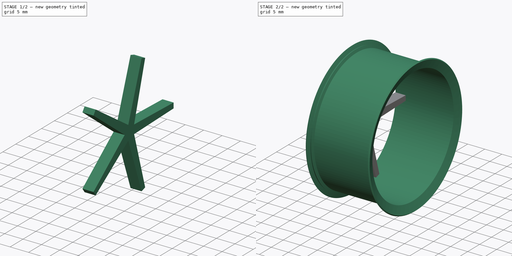
[diagram: build sequence overview — one tinted view per stage of 2, left to right]
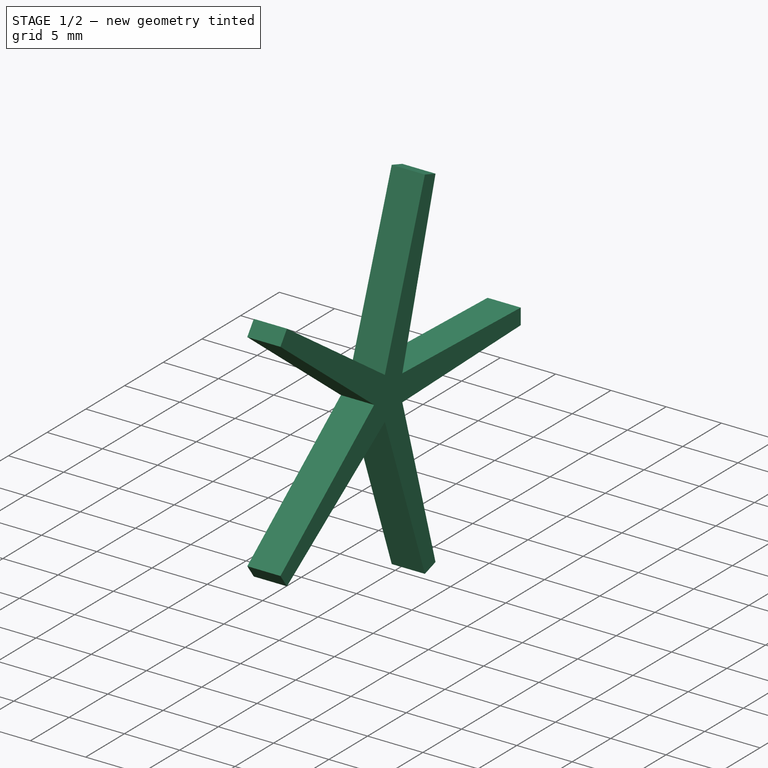
[diagram: stage 1 of 2 — iso view after this stage's code; geometry added in this stage tinted green]
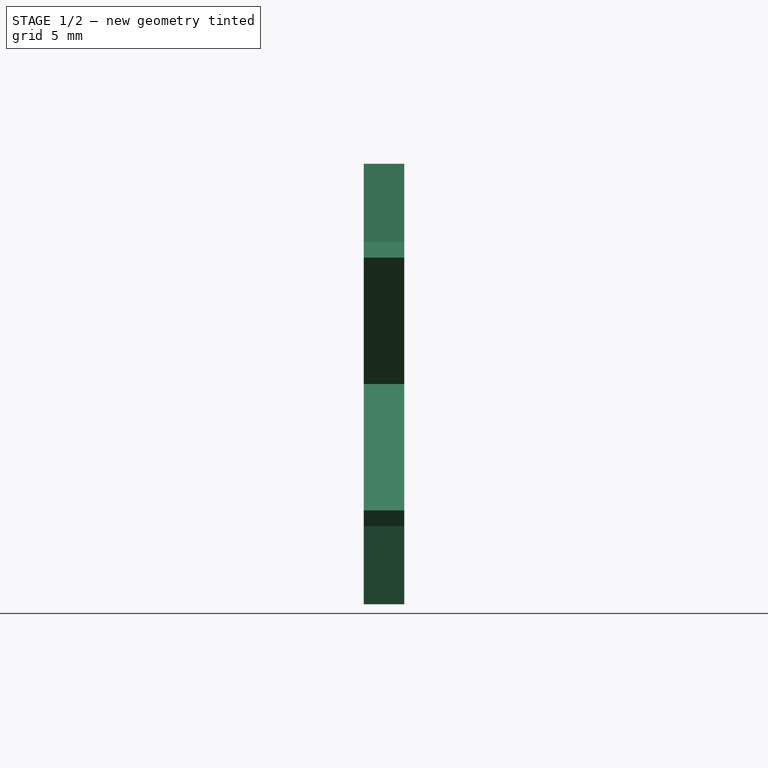
[diagram: stage 1 of 2 — front view after this stage's code; geometry added in this stage tinted green]
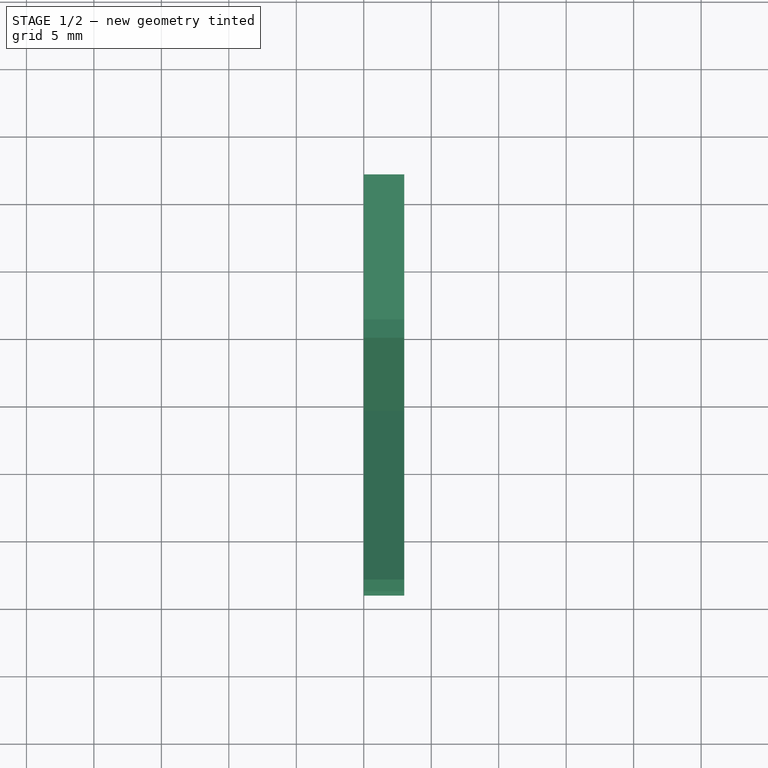
[diagram: stage 1 of 2 — top view after this stage's code; geometry added in this stage tinted green]
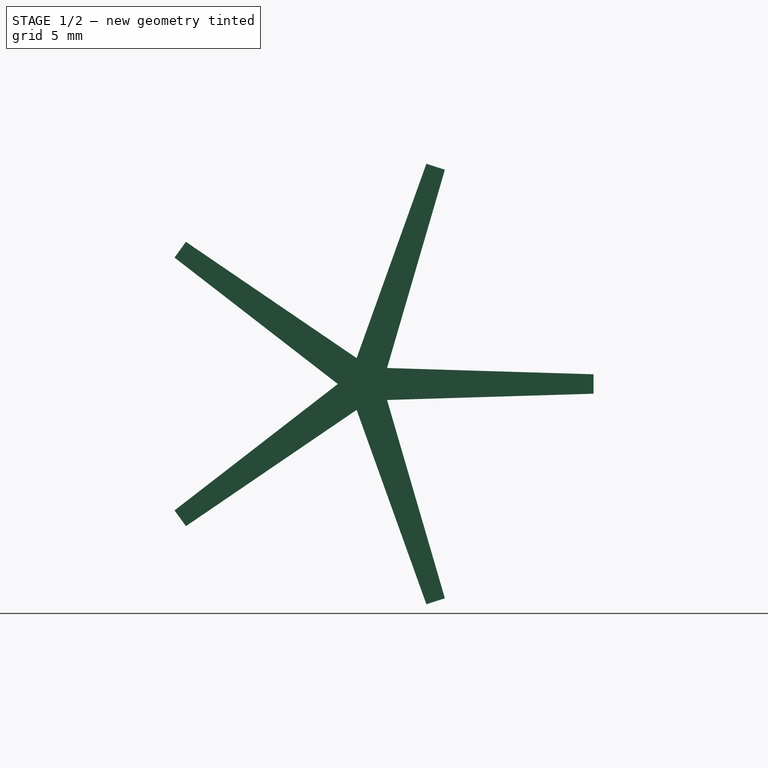
[diagram: stage 1 of 2 — right view after this stage's code; geometry added in this stage tinted green]
FCSTD DOCUMENT  (FreeCAD 0.18R4 (GitTag))
Label: Vossen
License: All rights reserved
LicenseURL: http://en.wikipedia.org/wiki/All_rights_reserved
objects: Sketcher::SketchObject×3, PartDesign::Body×2, PartDesign::Revolution×1, PartDesign::Pad×1, PartDesign::PolarPattern×1, PartDesign::Pocket×1
note: 12 computed .brp shape members not serialized (recipe doc carries the construction recipe); baked Part::Feature solids carry a one-line shape summary decoded from their .brp

FEATURE [PartDesign::Body] Body
  Group = -> [Sketch,Revolution]
  Origin = -> Origin
  Tip = -> Revolution
FEATURE [Sketcher::SketchObject] Sketch002
  MapMode = 5
  Placement = pos=(0,0,0) rot=(0.57735,0.57735,0.57735;2.0944rad)
  Support = -> [YZ_Plane001]
  sketch-geometry (4):
    g0: LineSegment StartX=0 StartY=1.235 StartZ=0 EndX=16.93 EndY=0.72 EndZ=0
    g1: LineSegment StartX=16.93 StartY=0.72 StartZ=0 EndX=16.93 EndY=-0.72 EndZ=0
    g2: LineSegment StartX=16.93 StartY=-0.72 StartZ=0 EndX=0 EndY=-1.235 EndZ=0
    g3: LineSegment StartX=0 StartY=-1.235 StartZ=0 EndX=0 EndY=1.235 EndZ=0
  constraints (10):
    c: Coincident(g0,g1)
    c: Coincident(g1,g2)
    c: Coincident(g2,g3)
    c: Coincident(g3,g0)
    c: PointOnObject(g0,g-2)
    c: DistanceY(g1,g1) = 1.44
    c: DistanceY(g3,g3) = 2.47
    c: DistanceX(g2,g1) = 16.93
    c: Symmetric(g2,g0,g-1)
    c: Symmetric(g0,g1,g-1)
FEATURE [PartDesign::Pad] Pad
  Length = 3
  Length2 = 100
  Placement = pos=(0,0,0) rot=(0.57735,0.57735,0.57735;2.0944rad)
  Profile = -> Sketch002
  Type = 0
FEATURE [PartDesign::PolarPattern] PolarPattern
  Angle = 360
  Axis = -> Sketch002 [N_Axis]
  BaseFeature = -> Pad
  Occurrences = 5
  Originals = -> [Pad]
  Placement = pos=(0,0,0) rot=(0.57735,0.57735,0.57735;2.0944rad)
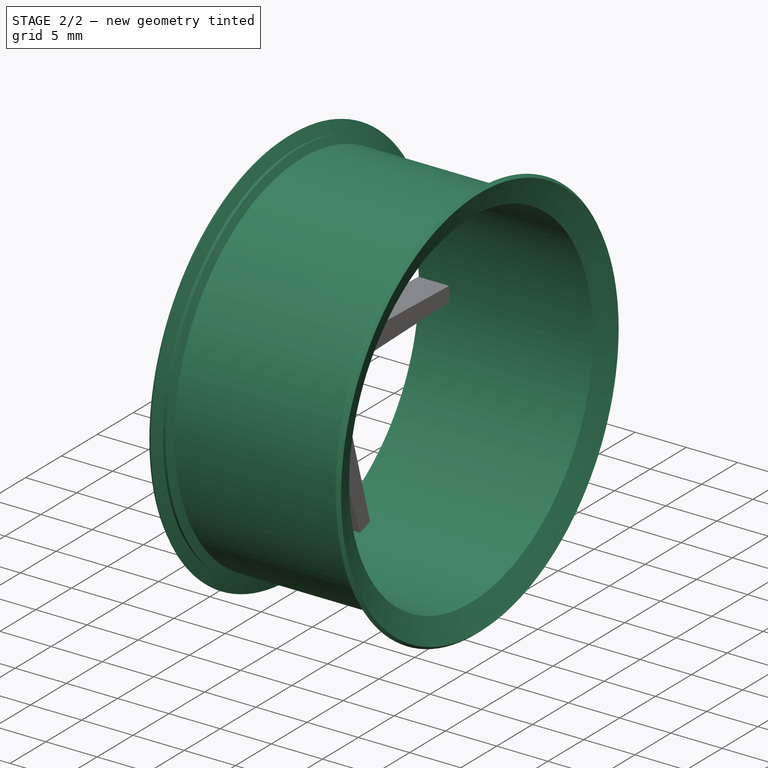
[diagram: stage 2 of 2 — iso view after this stage's code; geometry added in this stage tinted green]
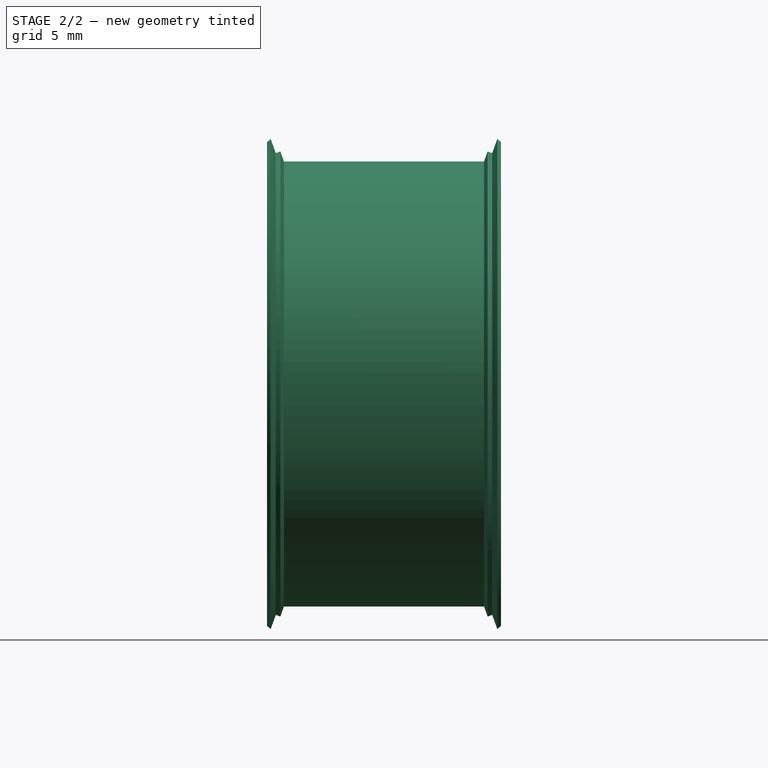
[diagram: stage 2 of 2 — front view after this stage's code; geometry added in this stage tinted green]
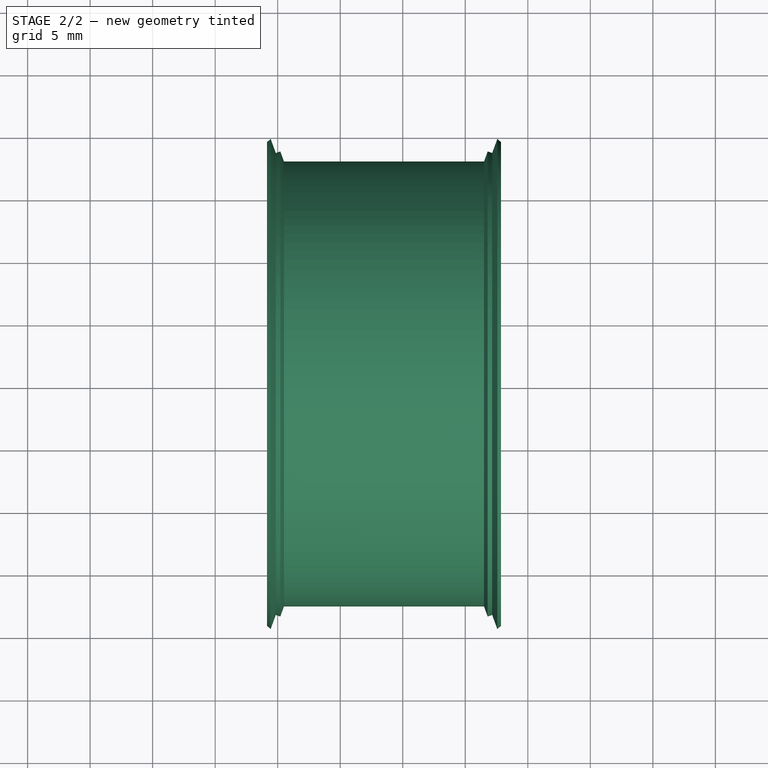
[diagram: stage 2 of 2 — top view after this stage's code; geometry added in this stage tinted green]
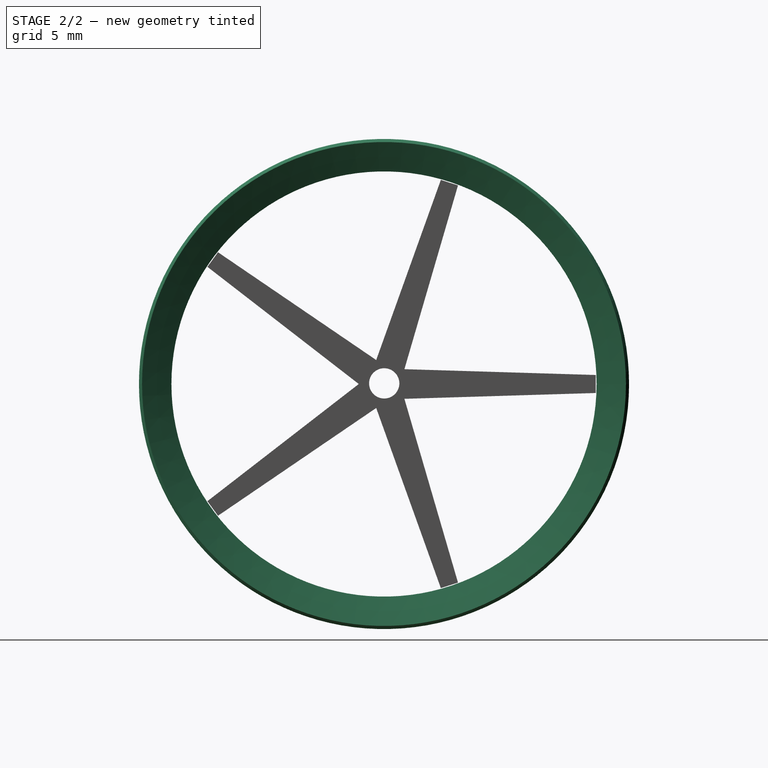
[diagram: stage 2 of 2 — right view after this stage's code; geometry added in this stage tinted green]
FEATURE [Sketcher::SketchObject] Sketch
  MapMode = 5
  Support = -> [XY_Plane]
  sketch-geometry (12):
    g0: LineSegment StartX=-0.85505 StartY=19.3492 StartZ=0 EndX=0 EndY=17 EndZ=0
    g1: LineSegment StartX=0 StartY=17 StartZ=0 EndX=17 EndY=17 EndZ=0
    g2: LineSegment StartX=17 StartY=17 StartZ=0 EndX=17.8551 EndY=19.3492 EndZ=0
    g3: LineSegment StartX=17.8551 StartY=19.3492 StartZ=0 EndX=17.5614 EndY=19.5956 EndZ=0
    g4: LineSegment StartX=17.5614 StartY=19.5956 StartZ=0 EndX=17.1513 EndY=18.4689 EndZ=0
    g5: LineSegment StartX=17.1513 StartY=18.4689 StartZ=0 EndX=16.7912 EndY=18.6 EndZ=0
    g6: LineSegment StartX=16.7912 StartY=18.6 StartZ=0 EndX=16.5 EndY=17.8 EndZ=0
    g7: LineSegment StartX=16.5 StartY=17.8 StartZ=0 EndX=0.5 EndY=17.8 EndZ=0
    g8: LineSegment StartX=0.5 StartY=17.8 StartZ=0 EndX=0.208824 EndY=18.6 EndZ=0
    g9: LineSegment StartX=0.208824 StartY=18.6 StartZ=0 EndX=-0.15135 EndY=18.4689 EndZ=0
    g10: LineSegment StartX=-0.15135 StartY=18.4689 StartZ=0 EndX=-0.561434 EndY=19.5956 EndZ=0
    g11: LineSegment StartX=-0.561434 StartY=19.5956 StartZ=0 EndX=-0.85505 EndY=19.3492 EndZ=0
  constraints (36):
    c: Coincident(g0,g1)
    c: Coincident(g1,g2)
    c: Coincident(g2,g3)
    c: Coincident(g3,g4)
    c: Coincident(g4,g5)
    c: Coincident(g5,g6)
    c: Coincident(g6,g7)
    c: Coincident(g7,g8)
    c: Coincident(g8,g9)
    c: Coincident(g9,g10)
    c: Coincident(g10,g11)
    c: Coincident(g11,g0)
    c: Parallel(g10,g0)
    c: Parallel(g8,g0)
    c: Parallel(g6,g2)
    c: Parallel(g4,g2)
    c: Equal(g11,g9)
    c: Equal(g5,g3)
    c: Equal(g8,g6)
    c: Equal(g5,g9)
    c: Equal(g10,g4)
    c: Equal(g2,g0)
    c: Angle(g0,g11) = 1.91986
    c: Angle(g9,g10) = 1.5708
    c: Angle(g3,g2) = 1.91986
    c: Angle(g4,g5) = 1.5708
    c: Horizontal(g1)
    c: DistanceY(g1,g6) = 0.8
    c: DistanceX(g1,g1) = 17
    c: DistanceX(g7,g7) = 16
    c: DistanceY(g8,g8) = 0.8
    c: Distance(g0) = 2.5
    c: Angle(g1,g0) = 1.91986
    c: Angle(g2,g1) = 1.91986
    c: DistanceY(g-1,g0) = 17
    c: DistanceX(g-1,g0) = 0
FEATURE [PartDesign::Revolution] Revolution
  Angle = 360
  Axis = (1,0,0)
  Base = (0,0,0)
  Profile = -> Sketch
  ReferenceAxis = -> Sketch [H_Axis]
FEATURE [Sketcher::SketchObject] Sketch003
  MapMode = 5
  Placement = pos=(0,0,0) rot=(0.57735,0.57735,0.57735;2.0944rad)
  Support = -> [YZ_Plane001]
  sketch-geometry (1):
    g0: Circle CenterX=0.017273 CenterY=0.050977 CenterZ=0 NormalX=0 NormalY=0 NormalZ=1 AngleXU=0 Radius=1.21
  constraints (1):
    c: Radius(g0) = 1.21
FEATURE [PartDesign::Pocket] Pocket
  BaseFeature = -> PolarPattern
  Length = 5
  Length2 = 100
  Placement = pos=(0,0,0) rot=(0.57735,0.57735,0.57735;2.0944rad)
  Profile = -> Sketch003
  Reversed = true
  Type = 0
FEATURE [PartDesign::Body] Body001
  Group = -> [Sketch002,Pad,PolarPattern,Sketch003,Pocket]
  Origin = -> Origin001
  Tip = -> Pocket
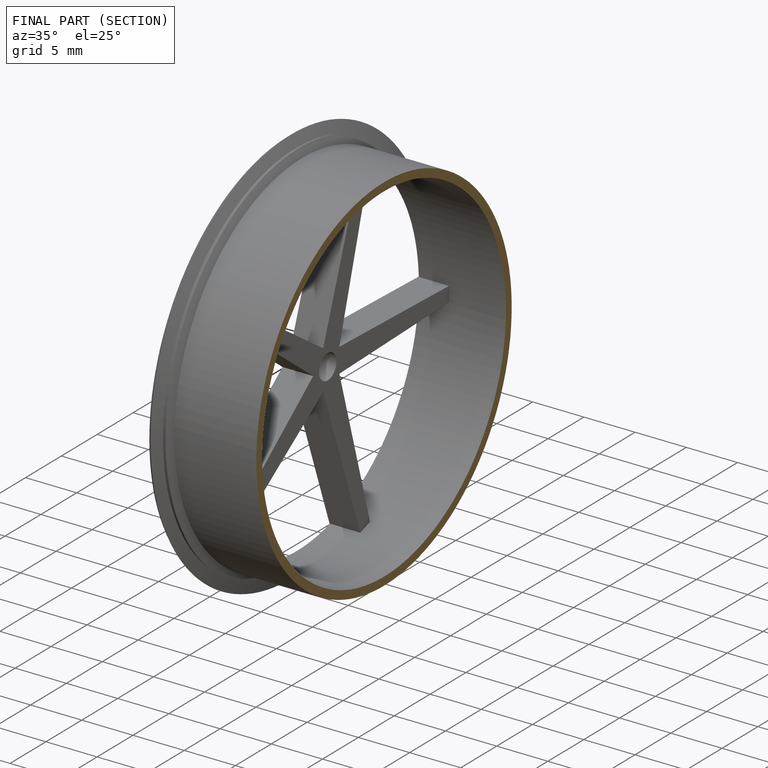
[diagram: finished part — half-section view (interior)]
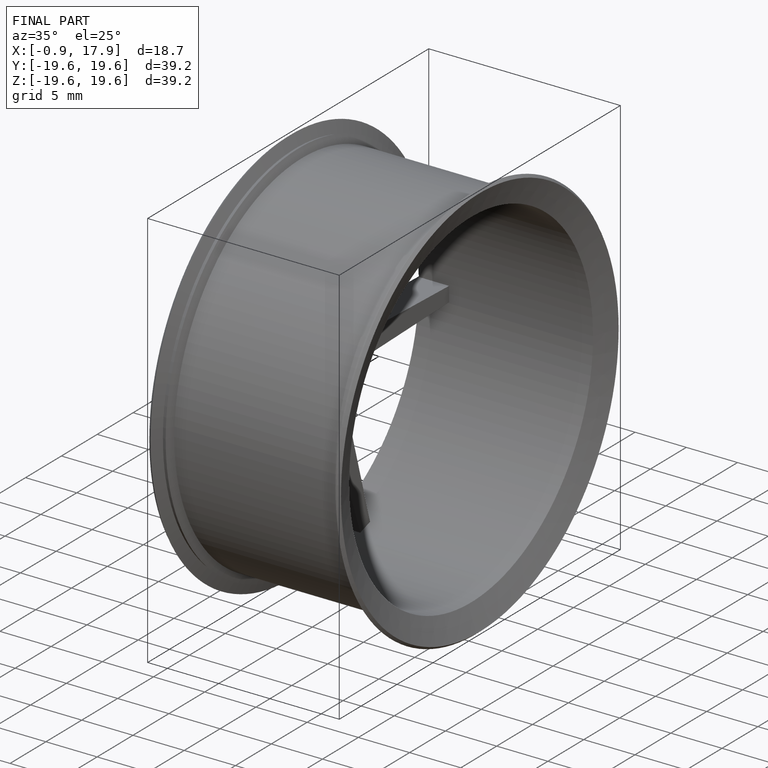
[diagram: finished part — iso view with bounding-box wireframe]
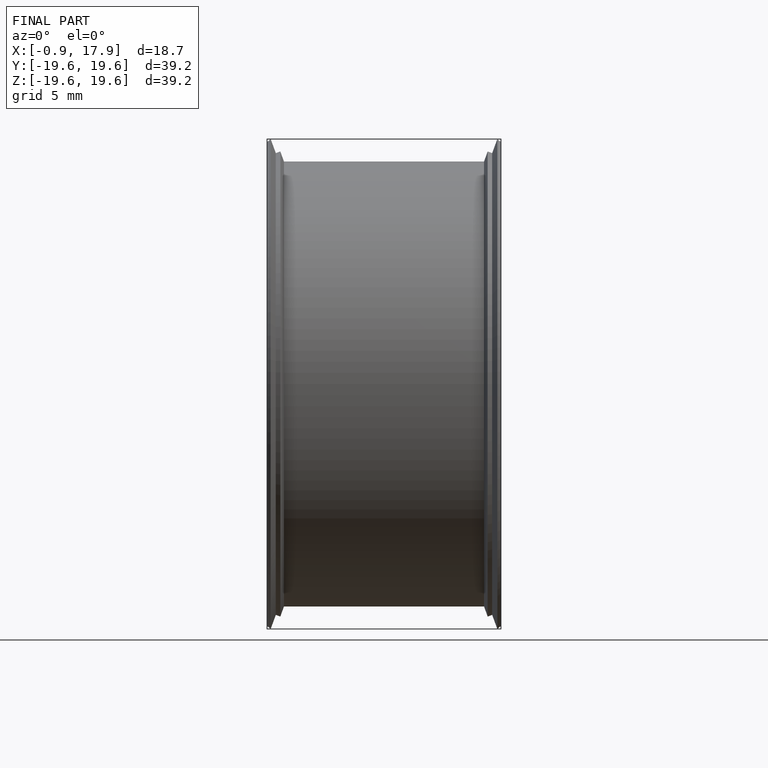
[diagram: finished part — front view with bounding-box wireframe]
